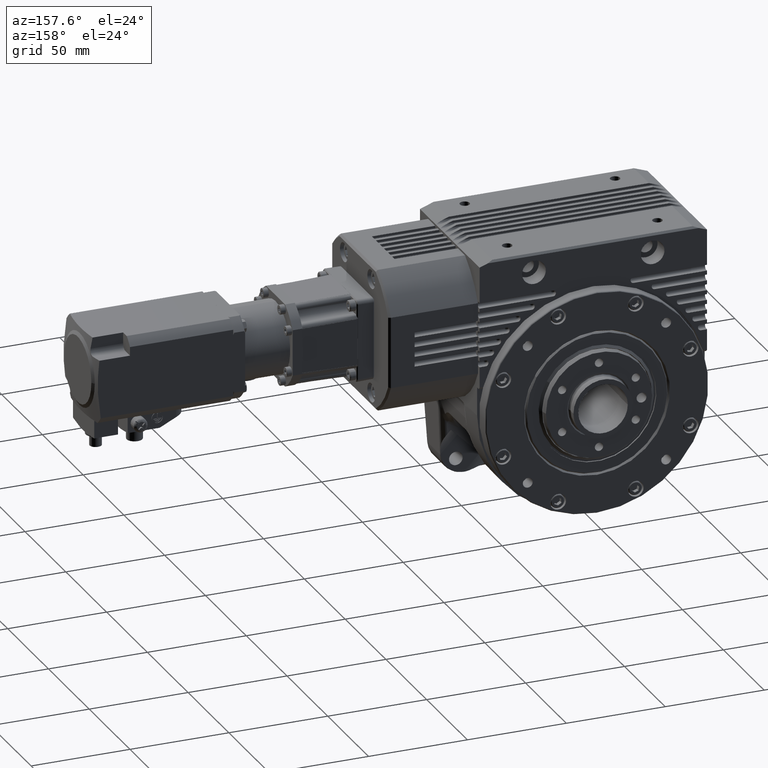
[diagram: clean part render]
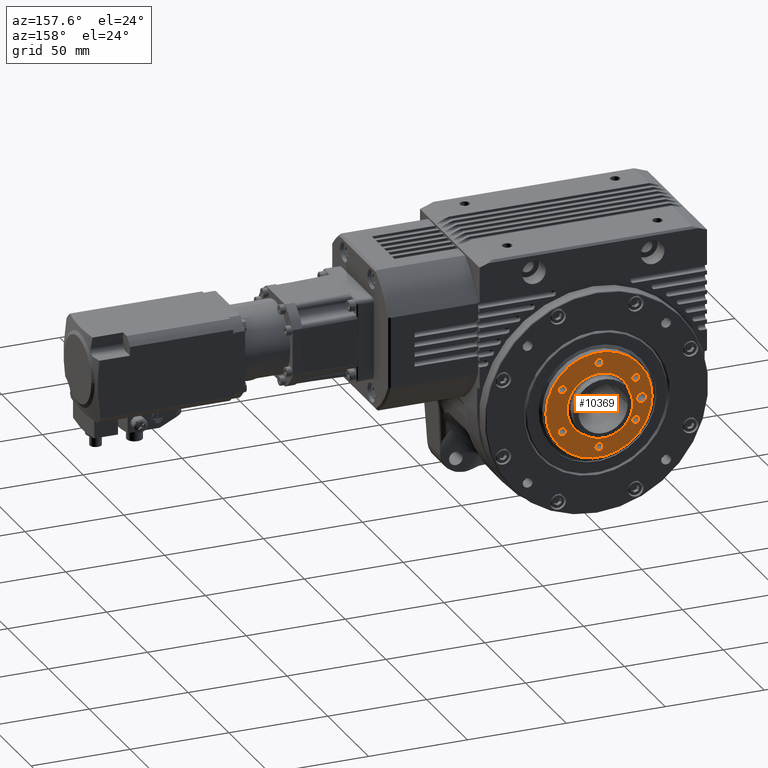
[diagram: same view with one face highlighted and labeled with its STEP entity id]
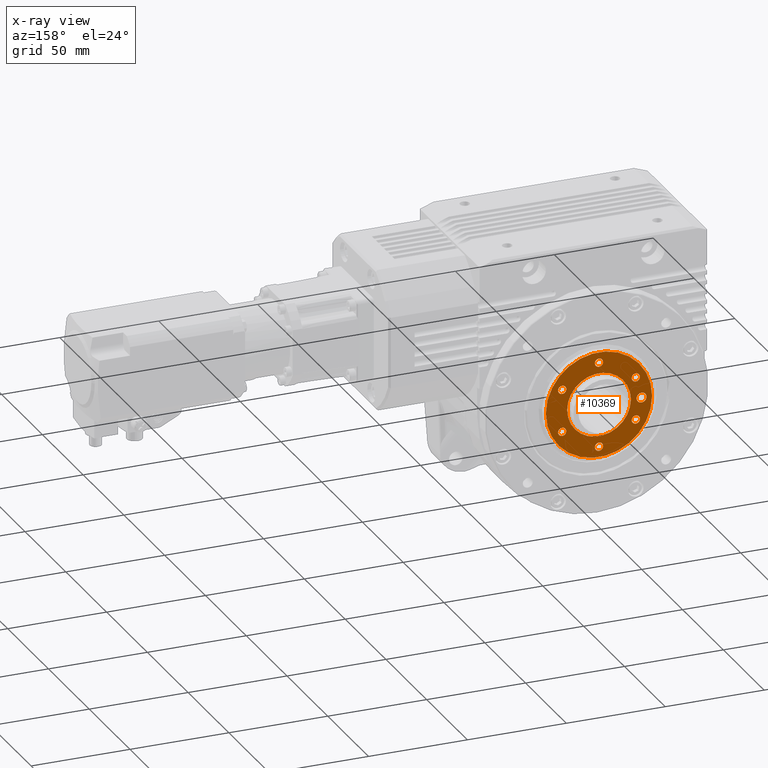
[diagram: x-ray of the same camera — body ghosted, the highlighted face saturated]
A machine part, auxiliary view. The second image highlights one B-rep face of the part: STEP entity #10369.
The next image is the same camera in x-ray: the body ghosted, the highlighted face saturated — about 0% of this face is hidden behind the body in this view.
In plain terms, the highlighted planar face has unit normal (0, -1, 0).
Its self-contained STEP definition (entity closure, byte-faithful):
#220 = AXIS2_PLACEMENT_3D ( 'NONE', #29907, #73792, #67015 ) ;
#327 = EDGE_LOOP ( 'NONE', ( #22641, #27399 ) ) ;
#653 = CARTESIAN_POINT ( 'NONE',  ( 16.51954618136570119, 47.50000000000000000, -10.74999999999961986 ) ) ;
#865 = CARTESIAN_POINT ( 'NONE',  ( 0.000000000000000000, 47.50000000000000000, 0.000000000000000000 ) ) ;
#916 = CARTESIAN_POINT ( 'NONE',  ( -21.50000000000000000, 47.50000000000000000, -5.359999039685590136E-13 ) ) ;
#2251 = AXIS2_PLACEMENT_3D ( 'NONE', #17944, #29930, #35895 ) ;
#2503 = CARTESIAN_POINT ( 'NONE',  ( 19.66954618136499988, 47.50000000000000000, 12.56865334794795963 ) ) ;
#2603 = CIRCLE ( 'NONE', #28158, 2.100000000000001421 ) ;
#2915 = DIRECTION ( 'NONE',  ( 1.000000000000000000, 0.000000000000000000, 2.478176394252580391E-14 ) ) ;
#2924 = CARTESIAN_POINT ( 'NONE',  ( 6.036541195316539854E-13, 47.50000000000000000, -21.50000000000000000 ) ) ;
#3802 = EDGE_CURVE ( 'NONE', #23746, #43943, #66313, .T. ) ;
#3890 = AXIS2_PLACEMENT_3D ( 'NONE', #2924, #63995, #4112 ) ;
#4072 = EDGE_CURVE ( 'NONE', #24362, #66251, #38329, .T. ) ;
#4112 = DIRECTION ( 'NONE',  ( -0.5000000000000254241, 0.000000000000000000, 0.8660254037844240527 ) ) ;
#4903 = CIRCLE ( 'NONE', #71198, 16.10000000000000142 ) ;
#5624 = AXIS2_PLACEMENT_3D ( 'NONE', #39920, #21178, #45532 ) ;
#6049 = CIRCLE ( 'NONE', #39214, 2.100000000000000977 ) ;
#6407 = AXIS2_PLACEMENT_3D ( 'NONE', #55486, #37110, #42727 ) ;
#6840 = DIRECTION ( 'NONE',  ( 1.000000000000000000, 0.000000000000000000, 2.493022809156085199E-14 ) ) ;
#7012 = EDGE_CURVE ( 'NONE', #67401, #56747, #43502, .T. ) ;
#7143 = CARTESIAN_POINT ( 'NONE',  ( 0.000000000000000000, 47.50000000000000000, 0.000000000000000000 ) ) ;
#7957 = AXIS2_PLACEMENT_3D ( 'NONE', #7143, #11976, #37087 ) ;
#7976 = AXIS2_PLACEMENT_3D ( 'NONE', #27939, #33505, #63460 ) ;
#8846 = EDGE_CURVE ( 'NONE', #66251, #24362, #42874, .T. ) ;
#9615 = CARTESIAN_POINT ( 'NONE',  ( -17.56954618136519741, 47.50000000000000000, -8.931346652053139934 ) ) ;
#10027 = CIRCLE ( 'NONE', #40639, 2.100000000000001421 ) ;
#10369 = ADVANCED_FACE ( 'NONE', ( #11762, #24943, #12164, #23363, #30911, #36499, #72076, #42097, #30517 ), #24148, .F. ) ;
#10664 = EDGE_CURVE ( 'NONE', #43943, #23746, #11855, .T. ) ;
#10693 = EDGE_CURVE ( 'NONE', #37937, #30866, #62784, .T. ) ;
#10740 = CARTESIAN_POINT ( 'NONE',  ( -19.66954618136509936, 47.50000000000000000, -12.56865334794781930 ) ) ;
#10841 = DIRECTION ( 'NONE',  ( 0.000000000000000000, 1.000000000000000000, 0.000000000000000000 ) ) ;
#11236 = CARTESIAN_POINT ( 'NONE',  ( -20.71954618136565074, 47.50000000000000000, 10.74999999999949907 ) ) ;
#11369 = DIRECTION ( 'NONE',  ( 0.000000000000000000, 0.000000000000000000, -1.000000000000000000 ) ) ;
#11522 = AXIS2_PLACEMENT_3D ( 'NONE', #865, #36400, #6840 ) ;
#11762 = FACE_OUTER_BOUND ( 'NONE', #327, .T. ) ;
#11855 = CIRCLE ( 'NONE', #42393, 2.100000000000000533 ) ;
#11976 = DIRECTION ( 'NONE',  ( 0.000000000000000000, 1.000000000000000000, 0.000000000000000000 ) ) ;
#12164 = FACE_BOUND ( 'NONE', #22349, .T. ) ;
#13574 = EDGE_CURVE ( 'NONE', #66318, #52133, #55937, .T. ) ;
#15293 = DIRECTION ( 'NONE',  ( -0.4999999999999712452, 0.000000000000000000, -0.8660254037844552499 ) ) ;
#16604 = DIRECTION ( 'NONE',  ( 0.000000000000000000, 1.000000000000000000, 0.000000000000000000 ) ) ;
#16759 = CARTESIAN_POINT ( 'NONE',  ( 1.049999999999306155, 47.50000000000000000, 19.68134665205275269 ) ) ;
#17782 = EDGE_LOOP ( 'NONE', ( #63660, #25566 ) ) ;
#17906 = VERTEX_POINT ( 'NONE', #9615 ) ;
#17944 = CARTESIAN_POINT ( 'NONE',  ( 0.000000000000000000, 47.50000000000000000, 0.000000000000000000 ) ) ;
#18232 = EDGE_CURVE ( 'NONE', #34149, #17906, #40820, .T. ) ;
#18940 = ORIENTED_EDGE ( 'NONE', *, *, #35053, .F. ) ;
#19308 = DIRECTION ( 'NONE',  ( 0.000000000000000000, 1.000000000000000000, 0.000000000000000000 ) ) ;
#19633 = CARTESIAN_POINT ( 'NONE',  ( 26.84979380895429912, 47.50000000000000000, 6.735282190568530490E-13 ) ) ;
#21178 = DIRECTION ( 'NONE',  ( 0.000000000000000000, 1.000000000000000000, 0.000000000000000000 ) ) ;
#22349 = EDGE_LOOP ( 'NONE', ( #72635, #40992 ) ) ;
#22641 = ORIENTED_EDGE ( 'NONE', *, *, #10693, .T. ) ;
#23363 = FACE_BOUND ( 'NONE', #23848, .T. ) ;
#23663 = EDGE_LOOP ( 'NONE', ( #67503, #35553 ) ) ;
#23746 = VERTEX_POINT ( 'NONE', #52624 ) ;
#23848 = EDGE_LOOP ( 'NONE', ( #72560, #43541 ) ) ;
#24148 = PLANE ( 'NONE',  #60233 ) ;
#24362 = VERTEX_POINT ( 'NONE', #35733 ) ;
#24427 = EDGE_CURVE ( 'NONE', #40086, #49545, #4903, .T. ) ;
#24468 = EDGE_LOOP ( 'NONE', ( #66360, #33839 ) ) ;
#24943 = FACE_BOUND ( 'NONE', #35508, .T. ) ;
#25291 = DIRECTION ( 'NONE',  ( 1.000000000000000000, 0.000000000000000000, 2.493022809156092141E-14 ) ) ;
#25566 = ORIENTED_EDGE ( 'NONE', *, *, #55611, .F. ) ;
#27399 = ORIENTED_EDGE ( 'NONE', *, *, #58690, .T. ) ;
#27939 = CARTESIAN_POINT ( 'NONE',  ( -21.50000000000000000, 47.50000000000000000, -5.359999039685590136E-13 ) ) ;
#28158 = AXIS2_PLACEMENT_3D ( 'NONE', #65532, #10841, #35185 ) ;
#28594 = CARTESIAN_POINT ( 'NONE',  ( 0.000000000000000000, 47.50000000000000000, 0.000000000000000000 ) ) ;
#28696 = CARTESIAN_POINT ( 'NONE',  ( -16.10000000000000142, 47.50000000000000000, -4.033483536207575042E-13 ) ) ;
#28738 = ORIENTED_EDGE ( 'NONE', *, *, #62313, .F. ) ;
#29907 = CARTESIAN_POINT ( 'NONE',  ( 18.61954618136570261, 47.50000000000000000, -10.74999999999955946 ) ) ;
#29930 = DIRECTION ( 'NONE',  ( 0.000000000000000000, 1.000000000000000000, 0.000000000000000000 ) ) ;
#30517 = FACE_BOUND ( 'NONE', #75211, .T. ) ;
#30866 = VERTEX_POINT ( 'NONE', #19633 ) ;
#30868 = DIRECTION ( 'NONE',  ( 0.000000000000000000, 1.000000000000000000, 0.000000000000000000 ) ) ;
#30911 = FACE_BOUND ( 'NONE', #17782, .T. ) ;
#31593 = EDGE_CURVE ( 'NONE', #17906, #34149, #46417, .T. ) ;
#31713 = AXIS2_PLACEMENT_3D ( 'NONE', #65339, #78897, #73326 ) ;
#32210 = DIRECTION ( 'NONE',  ( 0.000000000000000000, 1.000000000000000000, 0.000000000000000000 ) ) ;
#32702 = DIRECTION ( 'NONE',  ( 0.000000000000000000, 1.000000000000000000, 0.000000000000000000 ) ) ;
#33505 = DIRECTION ( 'NONE',  ( 0.000000000000000000, 1.000000000000000000, 0.000000000000000000 ) ) ;
#33706 = CARTESIAN_POINT ( 'NONE',  ( -24.00000000000000000, 47.50000000000000000, -5.986316358972480808E-13 ) ) ;
#33839 = ORIENTED_EDGE ( 'NONE', *, *, #4072, .F. ) ;
#33884 = DIRECTION ( 'NONE',  ( -1.000000000000000000, 0.000000000000000000, -2.478176394252580391E-14 ) ) ;
#34107 = CIRCLE ( 'NONE', #2251, 26.84979380895429912 ) ;
#34149 = VERTEX_POINT ( 'NONE', #10740 ) ;
#34913 = CARTESIAN_POINT ( 'NONE',  ( -19.00000000000000000, 47.50000000000000000, -4.736743337396570493E-13 ) ) ;
#35053 = EDGE_CURVE ( 'NONE', #56747, #67401, #78158, .T. ) ;
#35185 = DIRECTION ( 'NONE',  ( 0.5000000000000305311, 0.000000000000000000, -0.8660254037844210551 ) ) ;
#35411 = DIRECTION ( 'NONE',  ( -0.5000000000000254241, 0.000000000000000000, 0.8660254037844240527 ) ) ;
#35508 = EDGE_LOOP ( 'NONE', ( #64506, #18940 ) ) ;
#35553 = ORIENTED_EDGE ( 'NONE', *, *, #18232, .F. ) ;
#35713 = CARTESIAN_POINT ( 'NONE',  ( 6.843347611133460017E-13, 47.50000000000000000, -27.44999999999999929 ) ) ;
#35733 = CARTESIAN_POINT ( 'NONE',  ( 1.050000000000651967, 47.50000000000000000, -23.31865334794729705 ) ) ;
#35895 = DIRECTION ( 'NONE',  ( -1.000000000000000000, 0.000000000000000000, -2.493022809156085199E-14 ) ) ;
#36400 = DIRECTION ( 'NONE',  ( 0.000000000000000000, 1.000000000000000000, 0.000000000000000000 ) ) ;
#36499 = FACE_BOUND ( 'NONE', #24468, .T. ) ;
#37087 = DIRECTION ( 'NONE',  ( -1.000000000000000000, 0.000000000000000000, -2.493022809156085199E-14 ) ) ;
#37110 = DIRECTION ( 'NONE',  ( 0.000000000000000000, 1.000000000000000000, 0.000000000000000000 ) ) ;
#37937 = VERTEX_POINT ( 'NONE', #48942 ) ;
#38329 = CIRCLE ( 'NONE', #3890, 2.099999999999998312 ) ;
#39092 = CARTESIAN_POINT ( 'NONE',  ( 20.71954618136565074, 47.50000000000000000, -10.74999999999949907 ) ) ;
#39214 = AXIS2_PLACEMENT_3D ( 'NONE', #52415, #76773, #2915 ) ;
#39920 = CARTESIAN_POINT ( 'NONE',  ( -18.61954618136515194, 47.50000000000000000, -10.75000000000047962 ) ) ;
#40086 = VERTEX_POINT ( 'NONE', #28696 ) ;
#40369 = CARTESIAN_POINT ( 'NONE',  ( 16.10000000000000142, 47.50000000000000000, 4.013766722741300437E-13 ) ) ;
#40639 = AXIS2_PLACEMENT_3D ( 'NONE', #44986, #32210, #56563 ) ;
#40820 = CIRCLE ( 'NONE', #6407, 2.100000000000001421 ) ;
#40932 = DIRECTION ( 'NONE',  ( 1.000000000000000000, 0.000000000000000000, 2.493022809156085199E-14 ) ) ;
#40992 = ORIENTED_EDGE ( 'NONE', *, *, #46711, .F. ) ;
#42097 = FACE_BOUND ( 'NONE', #76141, .T. ) ;
#42393 = AXIS2_PLACEMENT_3D ( 'NONE', #69988, #57601, #15293 ) ;
#42490 = DIRECTION ( 'NONE',  ( 0.000000000000000000, -1.000000000000000000, 0.000000000000000000 ) ) ;
#42727 = DIRECTION ( 'NONE',  ( 0.4999999999999760192, 0.000000000000000000, 0.8660254037844524744 ) ) ;
#42874 = CIRCLE ( 'NONE', #48005, 2.099999999999998312 ) ;
#43502 = CIRCLE ( 'NONE', #75380, 2.499999999999998668 ) ;
#43541 = ORIENTED_EDGE ( 'NONE', *, *, #10664, .F. ) ;
#43679 = ORIENTED_EDGE ( 'NONE', *, *, #24427, .F. ) ;
#43943 = VERTEX_POINT ( 'NONE', #2503 ) ;
#44156 = CIRCLE ( 'NONE', #68378, 2.100000000000000977 ) ;
#44859 = ORIENTED_EDGE ( 'NONE', *, *, #45374, .F. ) ;
#44986 = CARTESIAN_POINT ( 'NONE',  ( -7.545750619416371114E-13, 47.50000000000000000, 21.50000000000000000 ) ) ;
#45374 = EDGE_CURVE ( 'NONE', #52133, #66318, #6049, .T. ) ;
#45532 = DIRECTION ( 'NONE',  ( 0.4999999999999760192, 0.000000000000000000, 0.8660254037844524744 ) ) ;
#46417 = CIRCLE ( 'NONE', #5624, 2.100000000000001421 ) ;
#46607 = VERTEX_POINT ( 'NONE', #78956 ) ;
#46711 = EDGE_CURVE ( 'NONE', #46607, #72168, #10027, .T. ) ;
#47792 = CARTESIAN_POINT ( 'NONE',  ( 6.036541195316539854E-13, 47.50000000000000000, -21.50000000000000000 ) ) ;
#48005 = AXIS2_PLACEMENT_3D ( 'NONE', #47792, #19308, #35411 ) ;
#48252 = EDGE_CURVE ( 'NONE', #72168, #46607, #2603, .T. ) ;
#48942 = CARTESIAN_POINT ( 'NONE',  ( -26.84979380895429912, 47.50000000000000000, -6.693714838686100183E-13 ) ) ;
#49545 = VERTEX_POINT ( 'NONE', #40369 ) ;
#51394 = EDGE_CURVE ( 'NONE', #59261, #75913, #60116, .T. ) ;
#52133 = VERTEX_POINT ( 'NONE', #11236 ) ;
#52415 = CARTESIAN_POINT ( 'NONE',  ( -18.61954618136570261, 47.50000000000000000, 10.74999999999955946 ) ) ;
#52624 = CARTESIAN_POINT ( 'NONE',  ( 17.56954618136515123, 47.50000000000000000, 8.931346652053260726 ) ) ;
#53030 = CARTESIAN_POINT ( 'NONE',  ( 18.61954618136510220, 47.50000000000000000, 10.75000000000059863 ) ) ;
#53807 = DIRECTION ( 'NONE',  ( 0.000000000000000000, 1.000000000000000000, 0.000000000000000000 ) ) ;
#55486 = CARTESIAN_POINT ( 'NONE',  ( -18.61954618136515194, 47.50000000000000000, -10.75000000000047962 ) ) ;
#55611 = EDGE_CURVE ( 'NONE', #75913, #59261, #44156, .T. ) ;
#55937 = CIRCLE ( 'NONE', #31713, 2.100000000000000977 ) ;
#56563 = DIRECTION ( 'NONE',  ( 0.5000000000000305311, 0.000000000000000000, -0.8660254037844210551 ) ) ;
#56747 = VERTEX_POINT ( 'NONE', #33706 ) ;
#57601 = DIRECTION ( 'NONE',  ( 0.000000000000000000, 1.000000000000000000, 0.000000000000000000 ) ) ;
#57851 = CARTESIAN_POINT ( 'NONE',  ( 18.61954618136570261, 47.50000000000000000, -10.74999999999955946 ) ) ;
#58690 = EDGE_CURVE ( 'NONE', #30866, #37937, #34107, .T. ) ;
#58937 = CARTESIAN_POINT ( 'NONE',  ( -1.049999999999444045, 47.50000000000000000, -19.68134665205269940 ) ) ;
#59261 = VERTEX_POINT ( 'NONE', #653 ) ;
#60116 = CIRCLE ( 'NONE', #220, 2.100000000000000977 ) ;
#60233 = AXIS2_PLACEMENT_3D ( 'NONE', #35713, #42490, #11369 ) ;
#62076 = CARTESIAN_POINT ( 'NONE',  ( -16.51954618136570119, 47.50000000000000000, 10.74999999999961986 ) ) ;
#62313 = EDGE_CURVE ( 'NONE', #49545, #40086, #70210, .T. ) ;
#62784 = CIRCLE ( 'NONE', #7957, 26.84979380895429912 ) ;
#63460 = DIRECTION ( 'NONE',  ( 1.000000000000000000, 0.000000000000000000, 2.493022809156092141E-14 ) ) ;
#63660 = ORIENTED_EDGE ( 'NONE', *, *, #51394, .F. ) ;
#63995 = DIRECTION ( 'NONE',  ( 0.000000000000000000, 1.000000000000000000, 0.000000000000000000 ) ) ;
#64506 = ORIENTED_EDGE ( 'NONE', *, *, #7012, .F. ) ;
#65050 = AXIS2_PLACEMENT_3D ( 'NONE', #53030, #53807, #72206 ) ;
#65339 = CARTESIAN_POINT ( 'NONE',  ( -18.61954618136570261, 47.50000000000000000, 10.74999999999955946 ) ) ;
#65532 = CARTESIAN_POINT ( 'NONE',  ( -7.545750619416371114E-13, 47.50000000000000000, 21.50000000000000000 ) ) ;
#65754 = ORIENTED_EDGE ( 'NONE', *, *, #13574, .F. ) ;
#66251 = VERTEX_POINT ( 'NONE', #58937 ) ;
#66313 = CIRCLE ( 'NONE', #65050, 2.100000000000000533 ) ;
#66318 = VERTEX_POINT ( 'NONE', #62076 ) ;
#66360 = ORIENTED_EDGE ( 'NONE', *, *, #8846, .F. ) ;
#67015 = DIRECTION ( 'NONE',  ( -1.000000000000000000, 0.000000000000000000, -2.478176394252580391E-14 ) ) ;
#67401 = VERTEX_POINT ( 'NONE', #34913 ) ;
#67503 = ORIENTED_EDGE ( 'NONE', *, *, #31593, .F. ) ;
#68378 = AXIS2_PLACEMENT_3D ( 'NONE', #57851, #32702, #33884 ) ;
#69988 = CARTESIAN_POINT ( 'NONE',  ( 18.61954618136510220, 47.50000000000000000, 10.75000000000059863 ) ) ;
#70210 = CIRCLE ( 'NONE', #11522, 16.10000000000000142 ) ;
#71198 = AXIS2_PLACEMENT_3D ( 'NONE', #28594, #16604, #40932 ) ;
#72076 = FACE_BOUND ( 'NONE', #23663, .T. ) ;
#72168 = VERTEX_POINT ( 'NONE', #16759 ) ;
#72206 = DIRECTION ( 'NONE',  ( -0.4999999999999712452, 0.000000000000000000, -0.8660254037844552499 ) ) ;
#72560 = ORIENTED_EDGE ( 'NONE', *, *, #3802, .F. ) ;
#72635 = ORIENTED_EDGE ( 'NONE', *, *, #48252, .F. ) ;
#73326 = DIRECTION ( 'NONE',  ( 1.000000000000000000, 0.000000000000000000, 2.478176394252580391E-14 ) ) ;
#73792 = DIRECTION ( 'NONE',  ( 0.000000000000000000, 1.000000000000000000, 0.000000000000000000 ) ) ;
#75211 = EDGE_LOOP ( 'NONE', ( #28738, #43679 ) ) ;
#75380 = AXIS2_PLACEMENT_3D ( 'NONE', #916, #30868, #25291 ) ;
#75913 = VERTEX_POINT ( 'NONE', #39092 ) ;
#76141 = EDGE_LOOP ( 'NONE', ( #65754, #44859 ) ) ;
#76773 = DIRECTION ( 'NONE',  ( 0.000000000000000000, 1.000000000000000000, 0.000000000000000000 ) ) ;
#78158 = CIRCLE ( 'NONE', #7976, 2.499999999999998668 ) ;
#78897 = DIRECTION ( 'NONE',  ( 0.000000000000000000, 1.000000000000000000, 0.000000000000000000 ) ) ;
#78956 = CARTESIAN_POINT ( 'NONE',  ( -1.050000000000815836, 47.50000000000000000, 23.31865334794729705 ) ) ;